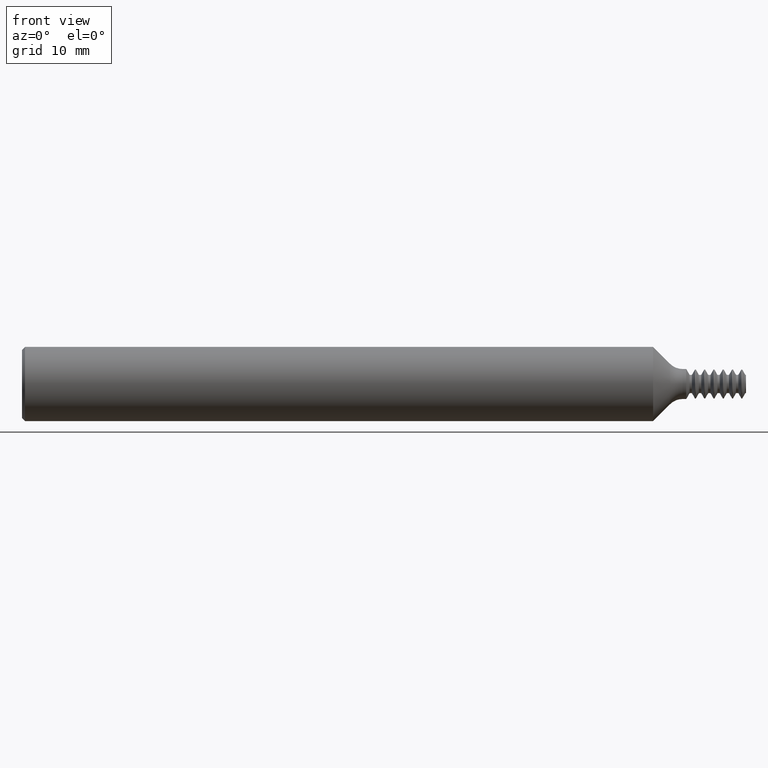
[diagram: clean part render]
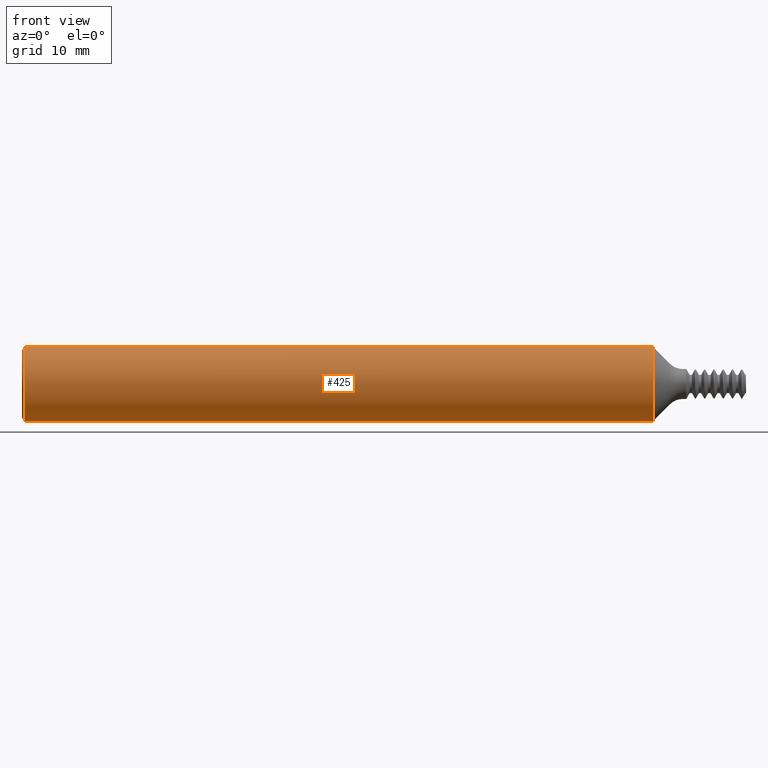
[diagram: same view with one face highlighted and labeled with its STEP entity id]
A machine part, front view. The second image highlights one B-rep face of the part: STEP entity #425.
In plain terms, the highlighted cylindrical surface (partial cylindrical patch) has radius 3.1712 mm, axis along (-1, -0, -0).
Its self-contained STEP definition (entity closure, byte-faithful):
#24 = EDGE_CURVE ( 'NONE', #1601, #977, #933, .T. ) ;
#49 = CARTESIAN_POINT ( 'NONE',  ( 0.0000000000000000000, 1.528971528735470422E-17, -0.1248500000000000026 ) ) ;
#51 = CARTESIAN_POINT ( 'NONE',  ( 0.0000000000000000000, 0.0000000000000000000, 0.0000000000000000000 ) ) ;
#61 = EDGE_CURVE ( 'NONE', #1204, #977, #313, .T. ) ;
#64 = DIRECTION ( 'NONE',  ( -1.000000000000000000, -0.0000000000000000000, -0.0000000000000000000 ) ) ;
#67 = AXIS2_PLACEMENT_3D ( 'NONE', #436, #1389, #935 ) ;
#102 = CARTESIAN_POINT ( 'NONE',  ( 0.0000000000000000000, 0.0000000000000000000, 0.1248500000000000026 ) ) ;
#131 = EDGE_CURVE ( 'NONE', #1204, #864, #774, .T. ) ;
#145 = CARTESIAN_POINT ( 'NONE',  ( 2.125000000000000000, 0.0000000000000000000, 0.0000000000000000000 ) ) ;
#176 = VECTOR ( 'NONE', #1022, 39.37007874015748143 ) ;
#227 = DIRECTION ( 'NONE',  ( -1.000000000000000000, -0.0000000000000000000, -0.0000000000000000000 ) ) ;
#307 = ORIENTED_EDGE ( 'NONE', *, *, #131, .T. ) ;
#313 = LINE ( 'NONE', #49, #176 ) ;
#322 = DIRECTION ( 'NONE',  ( 0.0000000000000000000, 0.0000000000000000000, 1.000000000000000000 ) ) ;
#358 = ORIENTED_EDGE ( 'NONE', *, *, #24, .T. ) ;
#425 = ADVANCED_FACE ( 'NONE', ( #748 ), #1051, .T. ) ;
#436 = CARTESIAN_POINT ( 'NONE',  ( 0.009999999999999620304, 0.0000000000000000000, 0.0000000000000000000 ) ) ;
#590 = LINE ( 'NONE', #102, #904 ) ;
#615 = AXIS2_PLACEMENT_3D ( 'NONE', #145, #1163, #1206 ) ;
#710 = CARTESIAN_POINT ( 'NONE',  ( 0.009999999999999620304, 1.528971528735470422E-17, 0.1248500000000000026 ) ) ;
#748 = FACE_OUTER_BOUND ( 'NONE', #1065, .T. ) ;
#774 = CIRCLE ( 'NONE', #615, 0.1248500000000000026 ) ;
#782 = ORIENTED_EDGE ( 'NONE', *, *, #898, .T. ) ;
#864 = VERTEX_POINT ( 'NONE', #1019 ) ;
#898 = EDGE_CURVE ( 'NONE', #864, #1601, #590, .T. ) ;
#904 = VECTOR ( 'NONE', #227, 39.37007874015748143 ) ;
#933 = CIRCLE ( 'NONE', #67, 0.1248500000000000026 ) ;
#935 = DIRECTION ( 'NONE',  ( 0.0000000000000000000, 0.0000000000000000000, -1.000000000000000000 ) ) ;
#977 = VERTEX_POINT ( 'NONE', #1124 ) ;
#1019 = CARTESIAN_POINT ( 'NONE',  ( 2.125000000000000000, 0.0000000000000000000, 0.1248500000000000026 ) ) ;
#1022 = DIRECTION ( 'NONE',  ( -1.000000000000000000, -0.0000000000000000000, -0.0000000000000000000 ) ) ;
#1051 = CYLINDRICAL_SURFACE ( 'NONE', #1582, 0.1248500000000000026 ) ;
#1065 = EDGE_LOOP ( 'NONE', ( #1477, #307, #782, #358 ) ) ;
#1081 = CARTESIAN_POINT ( 'NONE',  ( 2.125000000000000000, 1.528971528735470422E-17, -0.1248500000000000026 ) ) ;
#1124 = CARTESIAN_POINT ( 'NONE',  ( 0.009999999999999620304, 0.0000000000000000000, -0.1248500000000000026 ) ) ;
#1163 = DIRECTION ( 'NONE',  ( -1.000000000000000000, -0.0000000000000000000, -0.0000000000000000000 ) ) ;
#1204 = VERTEX_POINT ( 'NONE', #1081 ) ;
#1206 = DIRECTION ( 'NONE',  ( 0.0000000000000000000, 0.0000000000000000000, 1.000000000000000000 ) ) ;
#1389 = DIRECTION ( 'NONE',  ( 1.000000000000000000, 0.0000000000000000000, 0.0000000000000000000 ) ) ;
#1477 = ORIENTED_EDGE ( 'NONE', *, *, #61, .F. ) ;
#1582 = AXIS2_PLACEMENT_3D ( 'NONE', #51, #64, #322 ) ;
#1601 = VERTEX_POINT ( 'NONE', #710 ) ;